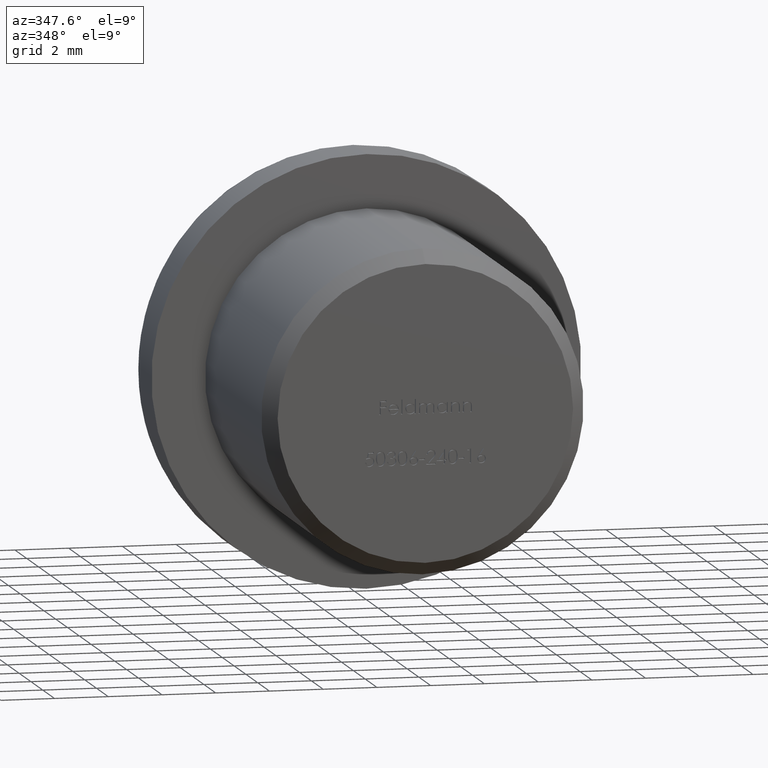
[diagram: clean part render]
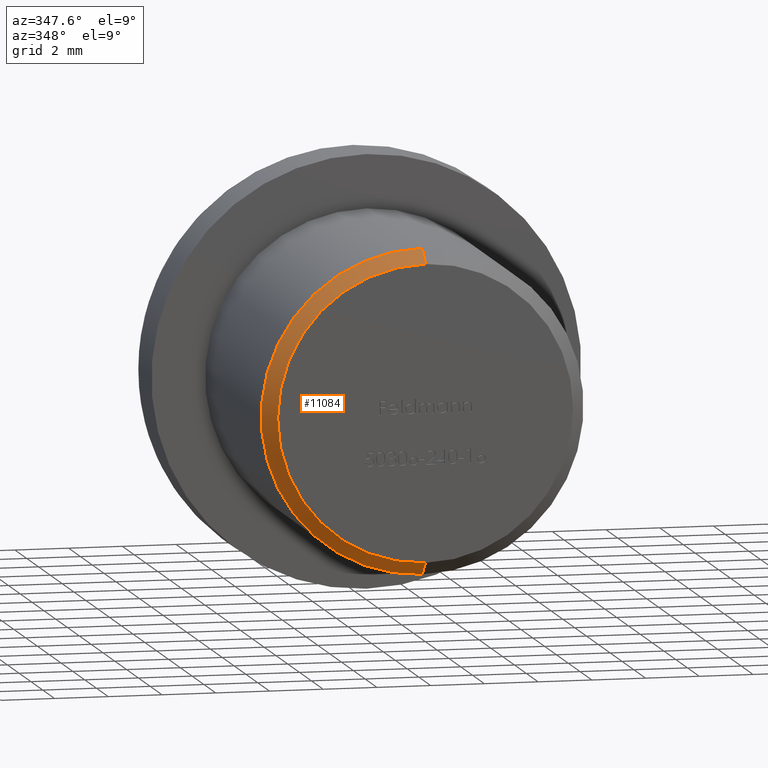
[diagram: same view with one face highlighted and labeled with its STEP entity id]
A machine part, auxiliary view. The second image highlights one B-rep face of the part: STEP entity #11084.
In plain terms, the highlighted conical surface has half-angle 45 deg.
Its self-contained STEP definition (entity closure, byte-faithful):
#661 = VERTEX_POINT ( 'NONE', #1964 ) ;
#1562 = CARTESIAN_POINT ( 'NONE',  ( 0.0000000000000000000, 0.0000000000000000000, 5.500000000000000900 ) ) ;
#1799 = EDGE_CURVE ( 'NONE', #13992, #10031, #6250, .T. ) ;
#1964 = CARTESIAN_POINT ( 'NONE',  ( 7.347880794884119700E-016, 0.5000000000000030000, 6.000000000000000000 ) ) ;
#2244 = VECTOR ( 'NONE', #7391, 1000.000000000000100 ) ;
#3032 = EDGE_LOOP ( 'NONE', ( #11873, #13982, #11464, #10103 ) ) ;
#3660 = CARTESIAN_POINT ( 'NONE',  ( 0.0000000000000000000, 0.0000000000000000000, 0.0000000000000000000 ) ) ;
#3684 = FACE_OUTER_BOUND ( 'NONE', #3032, .T. ) ;
#3931 = DIRECTION ( 'NONE',  ( 0.0000000000000000000, 0.7071067811865500200, 0.7071067811865451300 ) ) ;
#4993 = VERTEX_POINT ( 'NONE', #1562 ) ;
#5377 = AXIS2_PLACEMENT_3D ( 'NONE', #3660, #14010, #9530 ) ;
#5452 = DIRECTION ( 'NONE',  ( 0.0000000000000000000, 0.0000000000000000000, -1.000000000000000000 ) ) ;
#5653 = EDGE_CURVE ( 'NONE', #4993, #13992, #10941, .T. ) ;
#6250 = LINE ( 'NONE', #7103, #2244 ) ;
#6524 = DIRECTION ( 'NONE',  ( 0.0000000000000000000, 1.000000000000000000, 0.0000000000000000000 ) ) ;
#7103 = CARTESIAN_POINT ( 'NONE',  ( 6.735557395310443000E-016, 0.0000000000000000000, -5.500000000000000900 ) ) ;
#7248 = EDGE_CURVE ( 'NONE', #4993, #661, #11983, .T. ) ;
#7391 = DIRECTION ( 'NONE',  ( 8.659560562354903300E-017, 0.7071067811865500200, -0.7071067811865451300 ) ) ;
#7499 = CARTESIAN_POINT ( 'NONE',  ( 0.0000000000000000000, 0.0000000000000000000, 0.0000000000000000000 ) ) ;
#8612 = CONICAL_SURFACE ( 'NONE', #14422, 5.500000000000000900, 0.7853981633974447300 ) ;
#8620 = DIRECTION ( 'NONE',  ( 0.0000000000000000000, 0.0000000000000000000, 1.000000000000000000 ) ) ;
#8680 = DIRECTION ( 'NONE',  ( 0.0000000000000000000, 1.000000000000000000, 0.0000000000000000000 ) ) ;
#9530 = DIRECTION ( 'NONE',  ( 0.0000000000000000000, 0.0000000000000000000, -1.000000000000000000 ) ) ;
#9690 = CARTESIAN_POINT ( 'NONE',  ( 0.0000000000000000000, 0.5000000000000030000, -6.000000000000000000 ) ) ;
#9805 = AXIS2_PLACEMENT_3D ( 'NONE', #11243, #6524, #5452 ) ;
#10031 = VERTEX_POINT ( 'NONE', #9690 ) ;
#10103 = ORIENTED_EDGE ( 'NONE', *, *, #11180, .F. ) ;
#10171 = CARTESIAN_POINT ( 'NONE',  ( 7.041719095097280900E-016, 0.0000000000000000000, -5.500000000000000900 ) ) ;
#10610 = CIRCLE ( 'NONE', #9805, 6.000000000000000000 ) ;
#10941 = CIRCLE ( 'NONE', #5377, 5.500000000000000900 ) ;
#11084 = ADVANCED_FACE ( 'NONE', ( #3684 ), #8612, .T. ) ;
#11180 = EDGE_CURVE ( 'NONE', #10031, #661, #10610, .T. ) ;
#11243 = CARTESIAN_POINT ( 'NONE',  ( 0.0000000000000000000, 0.5000000000000030000, 0.0000000000000000000 ) ) ;
#11464 = ORIENTED_EDGE ( 'NONE', *, *, #7248, .T. ) ;
#11873 = ORIENTED_EDGE ( 'NONE', *, *, #1799, .F. ) ;
#11983 = LINE ( 'NONE', #12099, #14324 ) ;
#12099 = CARTESIAN_POINT ( 'NONE',  ( 0.0000000000000000000, 0.0000000000000000000, 5.500000000000000900 ) ) ;
#13982 = ORIENTED_EDGE ( 'NONE', *, *, #5653, .F. ) ;
#13992 = VERTEX_POINT ( 'NONE', #10171 ) ;
#14010 = DIRECTION ( 'NONE',  ( -0.0000000000000000000, -1.000000000000000000, -0.0000000000000000000 ) ) ;
#14324 = VECTOR ( 'NONE', #3931, 1000.000000000000100 ) ;
#14422 = AXIS2_PLACEMENT_3D ( 'NONE', #7499, #8680, #8620 ) ;